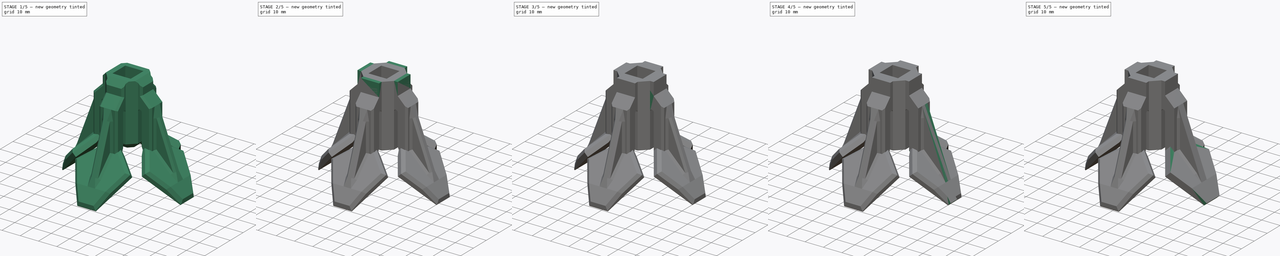
[diagram: build sequence overview — one tinted view per stage of 5, left to right]
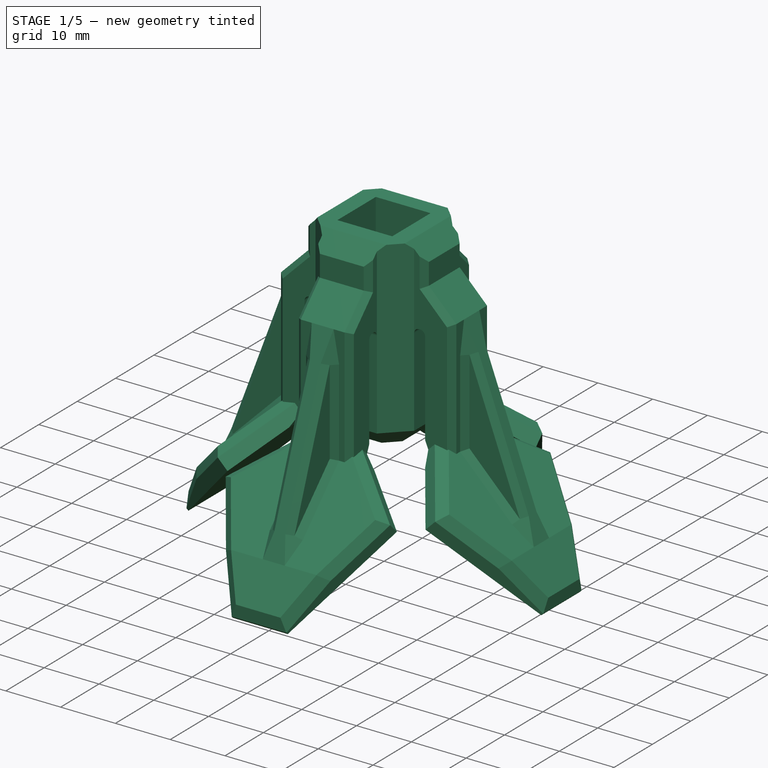
[diagram: stage 1 of 5 — iso view after this stage's code; geometry added in this stage tinted green]
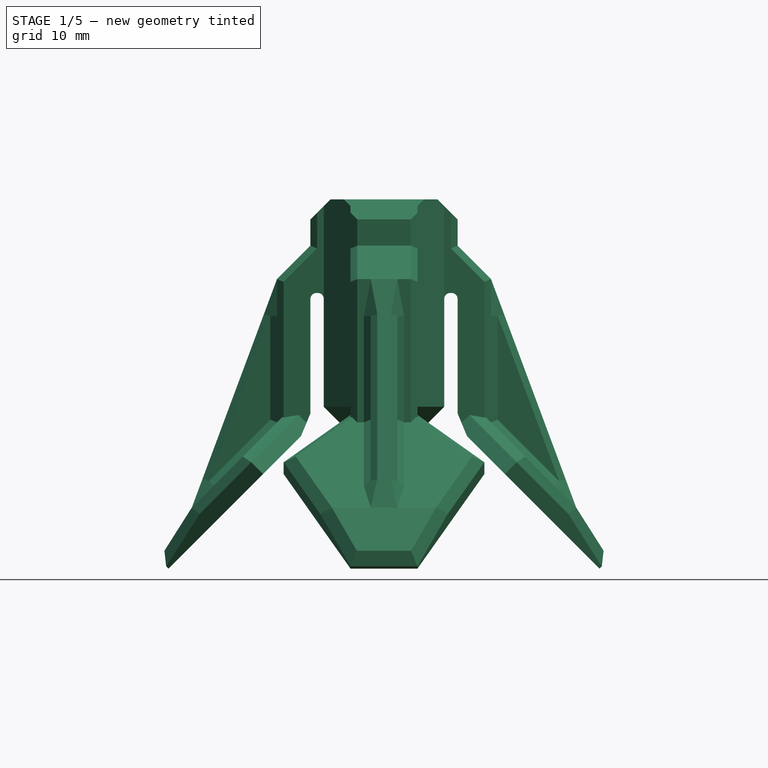
[diagram: stage 1 of 5 — front view after this stage's code; geometry added in this stage tinted green]
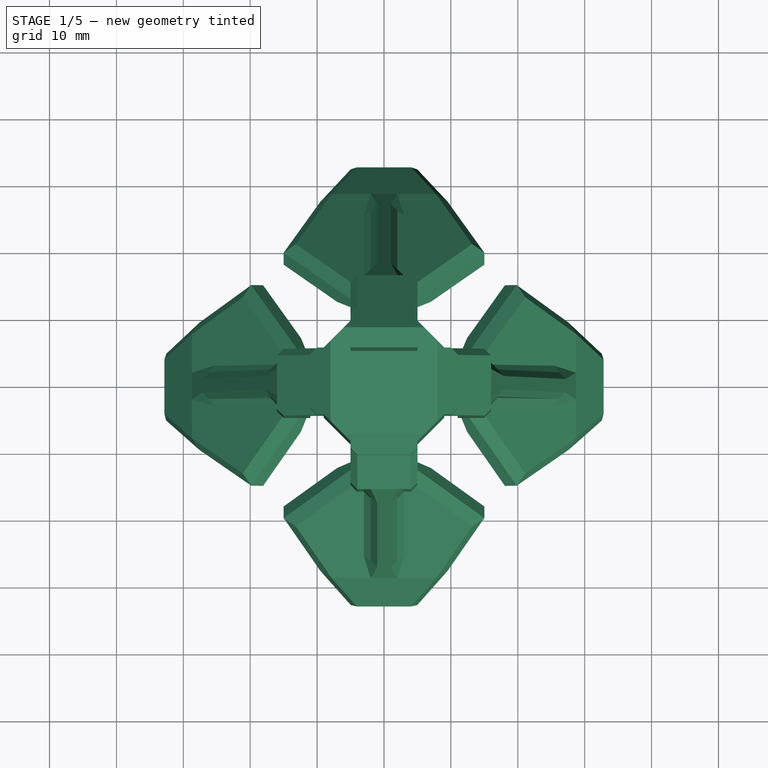
[diagram: stage 1 of 5 — top view after this stage's code; geometry added in this stage tinted green]
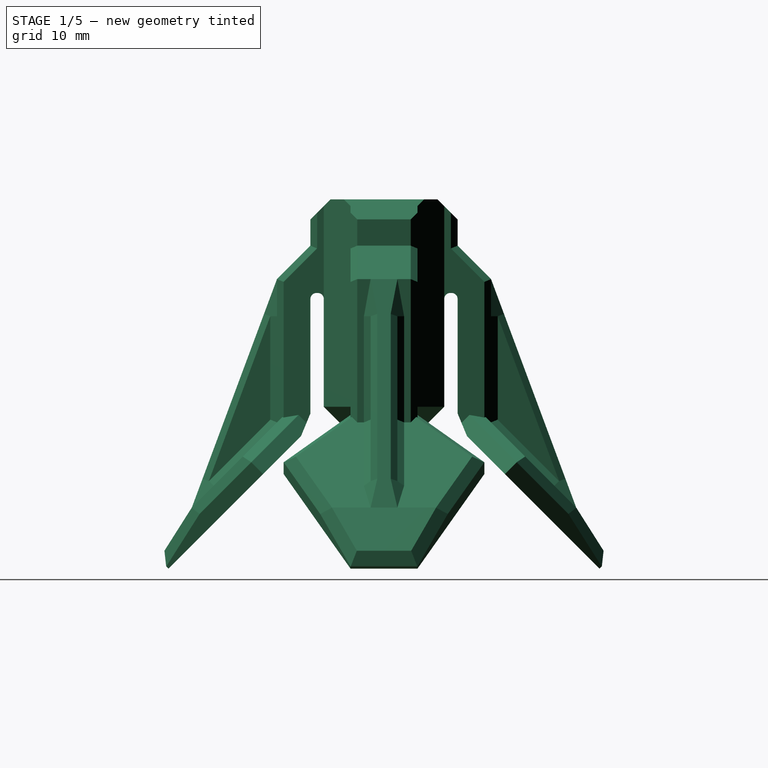
[diagram: stage 1 of 5 — right view after this stage's code; geometry added in this stage tinted green]
FCSTD DOCUMENT  (FreeCAD 0.16R6223 (Git))
Label: foot
License: All rights reserved
LicenseURL: http://en.wikipedia.org/wiki/All_rights_reserved
objects: Part::Feature×7, PartDesign::Chamfer×6, Sketcher::SketchObject×5, PartDesign::Pad×4, Part::MultiFuse×2, PartDesign::Fillet×2, PartDesign::Pocket×1
note: 32 computed .brp shape members not serialized (recipe doc carries the construction recipe); baked Part::Feature solids carry a one-line shape summary decoded from their .brp

FEATURE [Part::Feature] Pad002003001  label="Pad002004"
  shape: bbox 65.71 x 65.71 x 55.27 mm, 183 faces (baked)
FEATURE [PartDesign::Chamfer] Chamfer002005
  Base = -> Pad002003001 [Edge153,Edge225,Edge187,Edge119,Edge64,Edge94,Edge46,Edge91]
  Size = 3
FEATURE [PartDesign::Chamfer] Chamfer002006
  Base = -> Chamfer002005 [Edge153,Edge141,Edge142,Edge148,Edge122,Edge127,Edge115,Edge106,Edge107,Edge116,Edge50,Edge49,Edge18,Edge17,Edge90,Edge89]
  Size = 1
FEATURE [PartDesign::Chamfer] Chamfer002007
  Base = -> Chamfer002006 [Edge35,Edge45,Edge40,Edge30]
  Size = 3
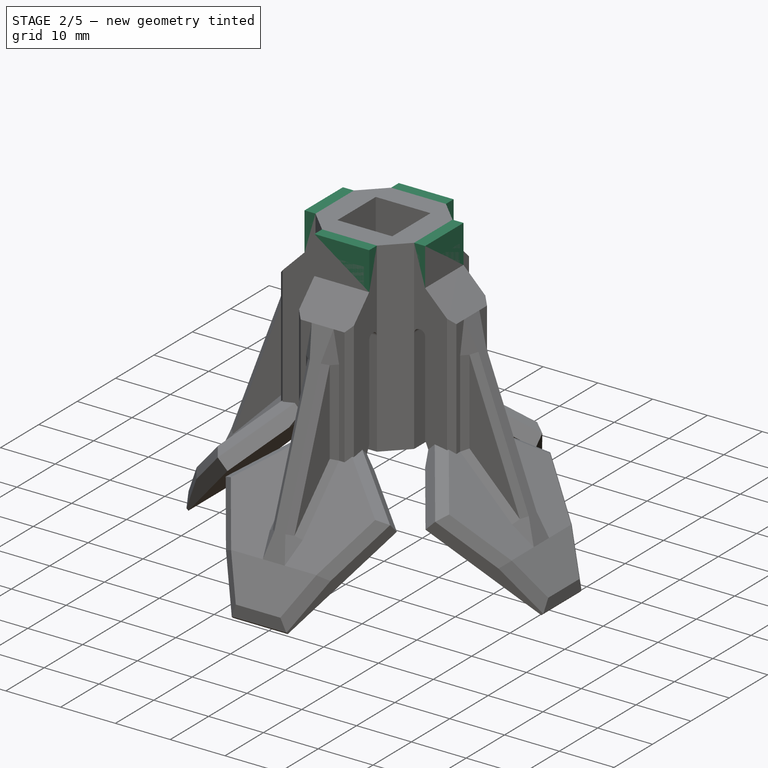
[diagram: stage 2 of 5 — iso view after this stage's code; geometry added in this stage tinted green]
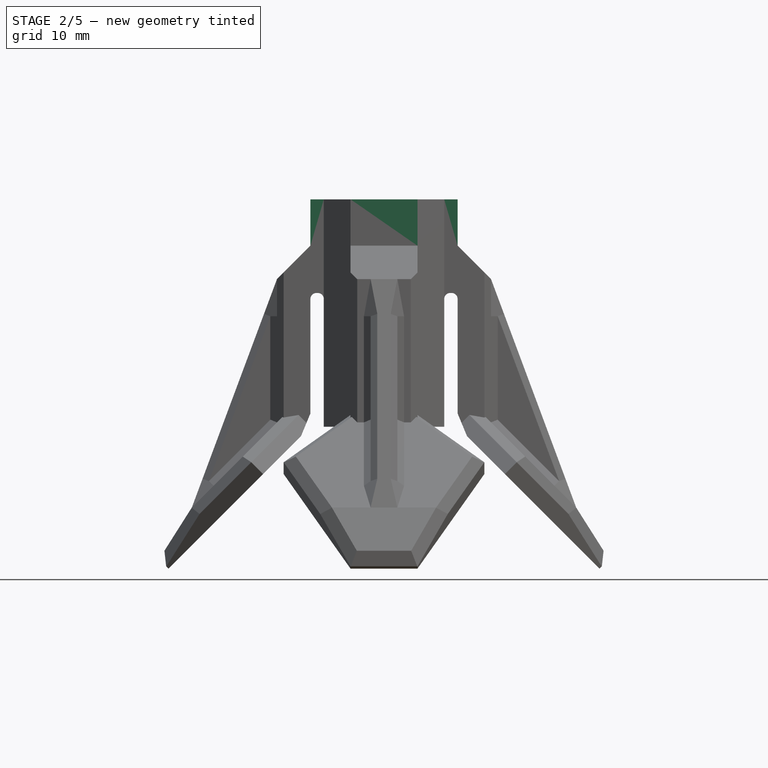
[diagram: stage 2 of 5 — front view after this stage's code; geometry added in this stage tinted green]
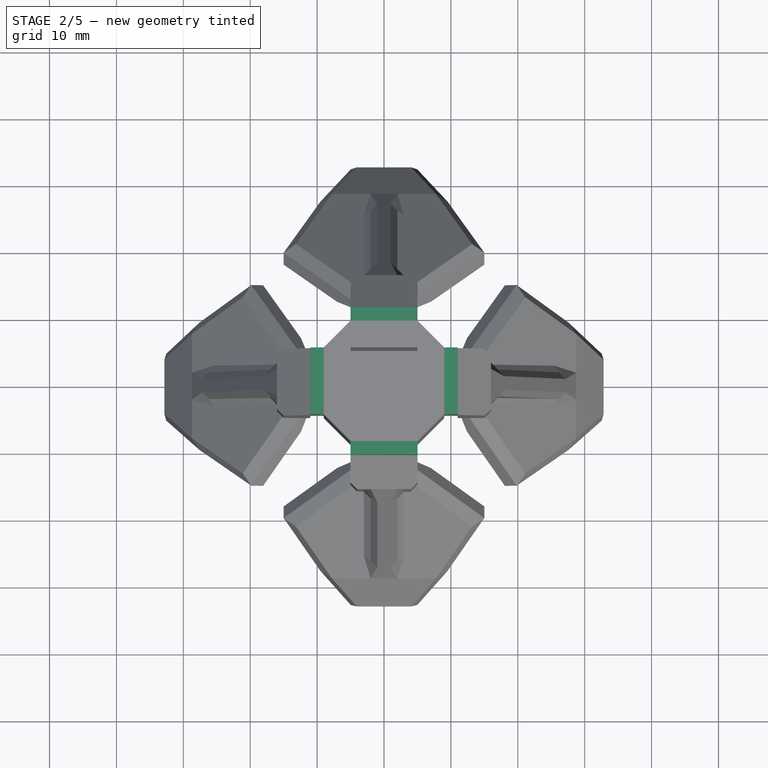
[diagram: stage 2 of 5 — top view after this stage's code; geometry added in this stage tinted green]
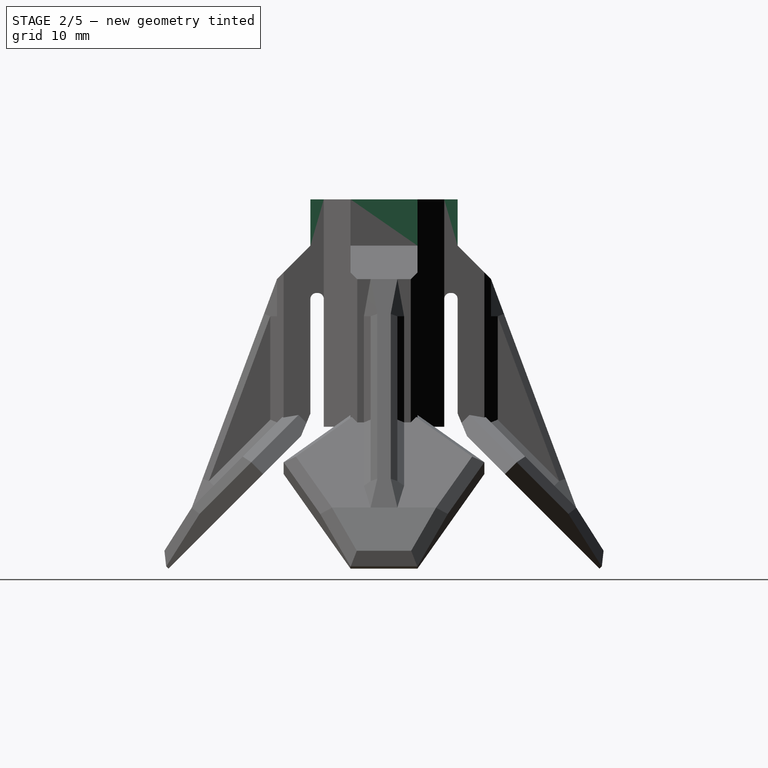
[diagram: stage 2 of 5 — right view after this stage's code; geometry added in this stage tinted green]
FEATURE [Part::Feature] Chamfer002001  label="Chamfer003"
  shape: bbox 32.88 x 30.06 x 55.27 mm, 48 faces (baked)
FEATURE [Part::Feature] Chamfer002002  label="Chamfer004"
  Placement = pos=(0,0,0) rot=(0,0,1;1.5708rad)
  shape: bbox 30.06 x 32.88 x 55.27 mm, 48 faces (baked)
FEATURE [Part::Feature] Chamfer002003  label="Chamfer005"
  Placement = pos=(0,0,0) rot=(0,0,-1;1.5708rad)
  shape: bbox 30.06 x 32.88 x 55.27 mm, 48 faces (baked)
FEATURE [Part::Feature] Chamfer002004  label="Chamfer006"
  Placement = pos=(0,0,0) rot=(0,0,1;3.14159rad)
  shape: bbox 32.88 x 30.06 x 55.27 mm, 48 faces (baked)
FEATURE [Part::MultiFuse] Fusion001
  Shapes = -> [Chamfer002001,Chamfer002004,Chamfer002002,Chamfer002003]
FEATURE [Sketcher::SketchObject] Sketch005
  ExternalGeometry = -> [Fusion001]
  Placement = pos=(0,0,0) rot=(1,0,0;3.14159rad)
  Support = -> Fusion001 [Face38]
  sketch-geometry (12):
    g0: LineSegment StartX=-5 StartY=5 StartZ=0 EndX=5 EndY=5 EndZ=0
    g1: LineSegment StartX=5 StartY=5 StartZ=0 EndX=5 EndY=-5 EndZ=0
    g2: LineSegment StartX=5 StartY=-5 StartZ=0 EndX=-5 EndY=-5 EndZ=0
    g3: LineSegment StartX=-5 StartY=-5 StartZ=0 EndX=-5 EndY=5 EndZ=0
    g4: LineSegment StartX=-9 StartY=5 StartZ=0 EndX=-5 EndY=9 EndZ=0
    g5: LineSegment StartX=-5 StartY=9 StartZ=0 EndX=5 EndY=9 EndZ=0
    g6: LineSegment StartX=5 StartY=9 StartZ=0 EndX=9 EndY=5 EndZ=0
    g7: LineSegment StartX=9 StartY=5 StartZ=0 EndX=9 EndY=-5 EndZ=0
    g8: LineSegment StartX=9 StartY=-5 StartZ=0 EndX=5 EndY=-9 EndZ=0
    g9: LineSegment StartX=5 StartY=-9 StartZ=0 EndX=-5 EndY=-9 EndZ=0
    g10: LineSegment StartX=-5 StartY=-9 StartZ=0 EndX=-9 EndY=-5 EndZ=0
    g11: LineSegment StartX=-9 StartY=-5 StartZ=0 EndX=-9 EndY=5 EndZ=0
  constraints (28):
    c: Coincident(g0,g1)
    c: Coincident(g1,g2)
    c: Coincident(g2,g3)
    c: Coincident(g3,g0)
    c: Horizontal(g0)
    c: Horizontal(g2)
    c: Vertical(g1)
    c: Vertical(g3)
    c: Coincident(g0,g-3)
    c: Coincident(g1,g-4)
    c: Coincident(g4,g5)
    c: Coincident(g5,g6)
    c: Coincident(g6,g7)
    c: Vertical(g7)
    c: Coincident(g7,g8)
    c: Coincident(g8,g9)
    c: Horizontal(g9)
    c: Coincident(g9,g10)
    c: Coincident(g10,g11)
    c: Coincident(g4,g11)
    c: Coincident(g4,g-5)
    c: Coincident(g4,g-6)
    c: Coincident(g5,g-6)
    c: Coincident(g6,g-7)
    c: Coincident(g8,g-8)
    c: Coincident(g7,g-7)
    c: Coincident(g9,g-8)
    c: Coincident(g10,g-5)
FEATURE [PartDesign::Pad] Pad002003
  Length = 10
  Length2 = 100
  Sketch = -> Sketch005
  Type = 3
  UpToFace = -> Fusion001 [Face37]
FEATURE [PartDesign::Fillet] Fillet001
  Base = -> Chamfer002007 [Edge61,Edge62,Edge59,Edge60]
  Radius = 1
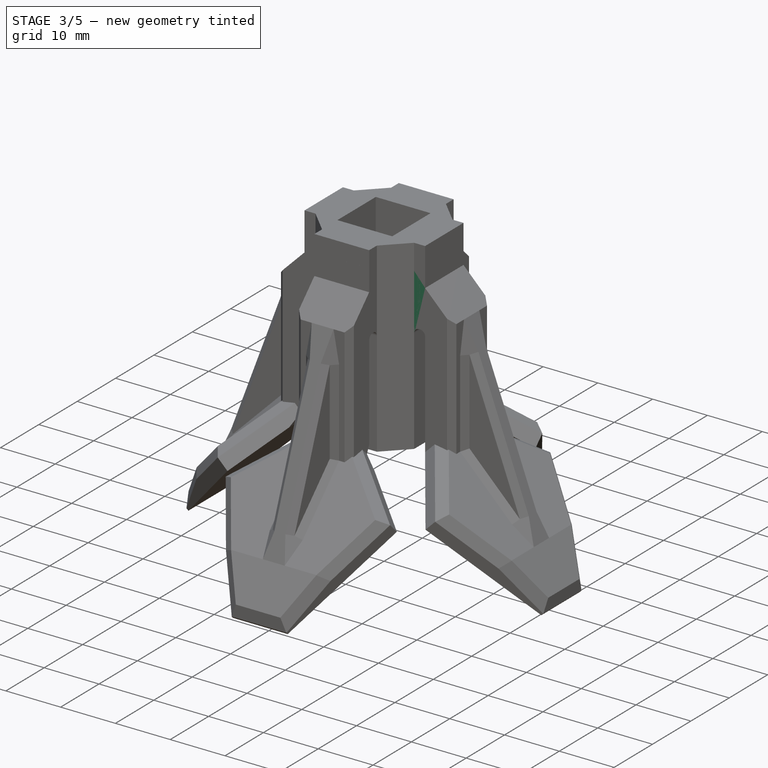
[diagram: stage 3 of 5 — iso view after this stage's code; geometry added in this stage tinted green]
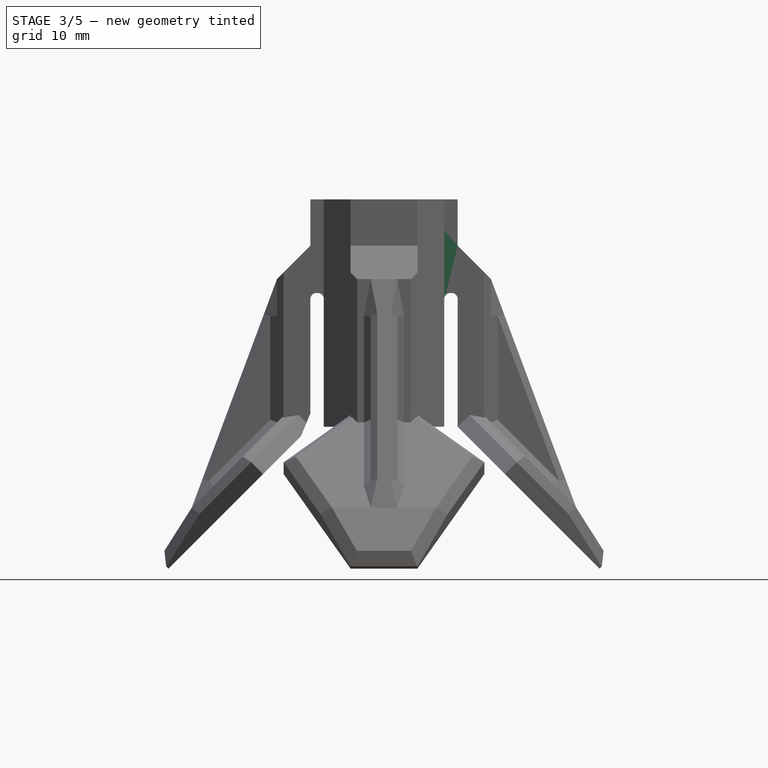
[diagram: stage 3 of 5 — front view after this stage's code; geometry added in this stage tinted green]
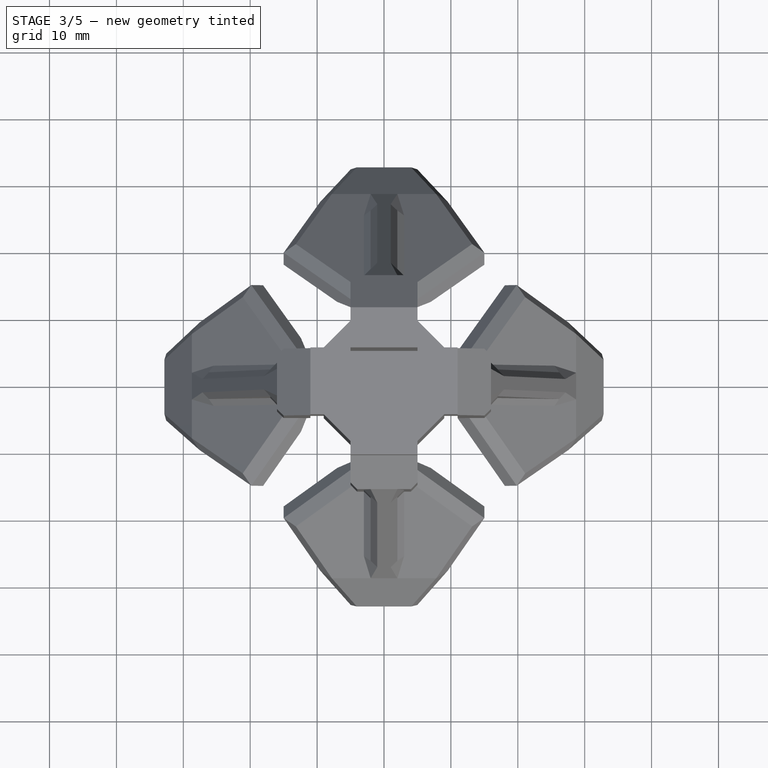
[diagram: stage 3 of 5 — top view after this stage's code; geometry added in this stage tinted green]
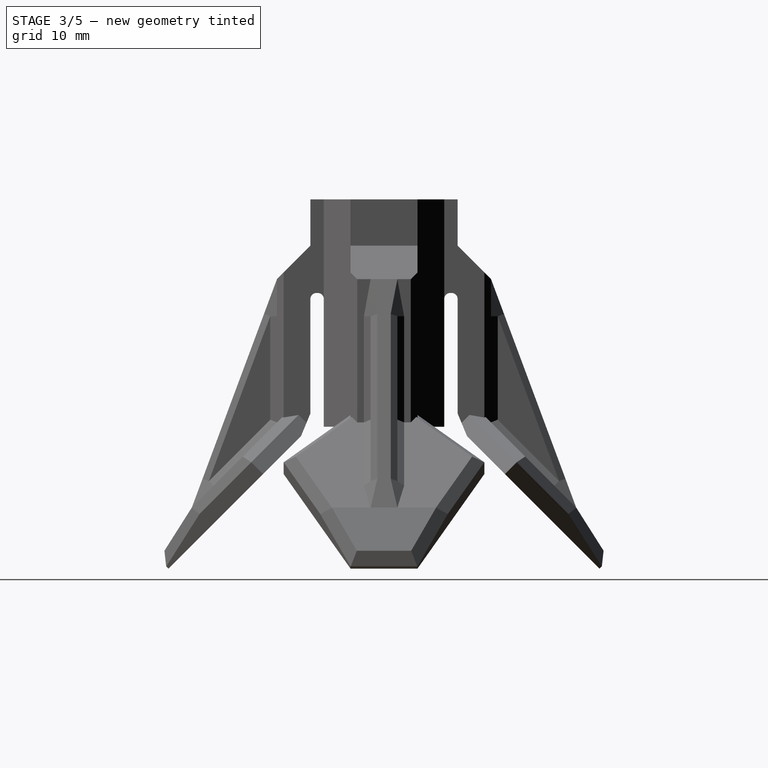
[diagram: stage 3 of 5 — right view after this stage's code; geometry added in this stage tinted green]
FEATURE [Part::Feature] Pocket001
  shape: bbox 33.63 x 30 x 55.21 mm, 26 faces (baked)
FEATURE [PartDesign::Chamfer] Chamfer
  Base = -> Pocket001 [Edge1,Edge25,Edge26,Edge31,Edge20,Edge5,Edge6,Edge3]
  Size = 1
FEATURE [PartDesign::Chamfer] Chamfer001
  Base = -> Chamfer [Edge11,Edge12,Edge44,Edge41,Edge84,Edge87,Edge40]
  Size = 1.5
FEATURE [PartDesign::Fillet] Fillet
  Base = -> Chamfer001 [Edge79,Edge84]
  Radius = 0.9
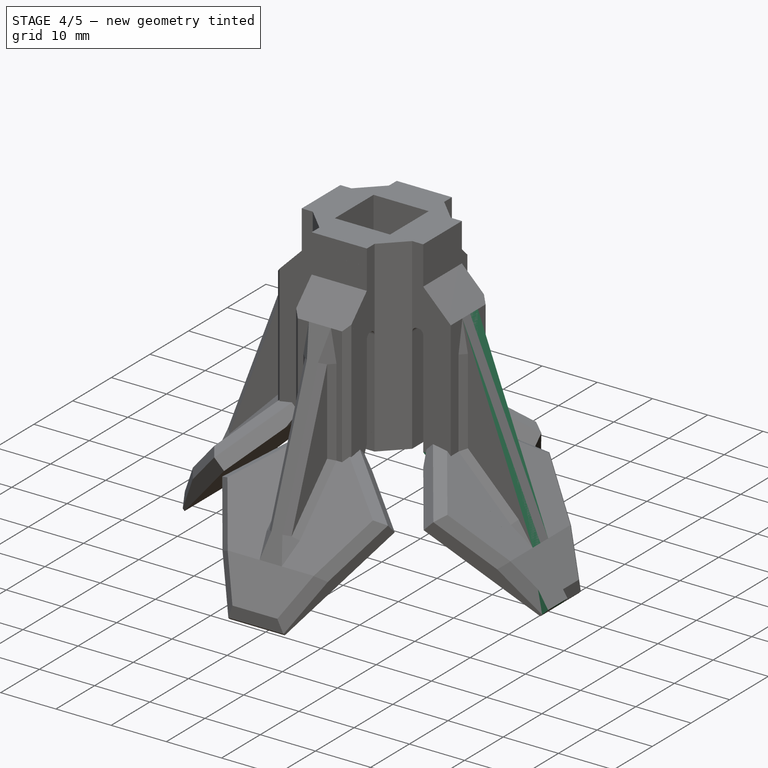
[diagram: stage 4 of 5 — iso view after this stage's code; geometry added in this stage tinted green]
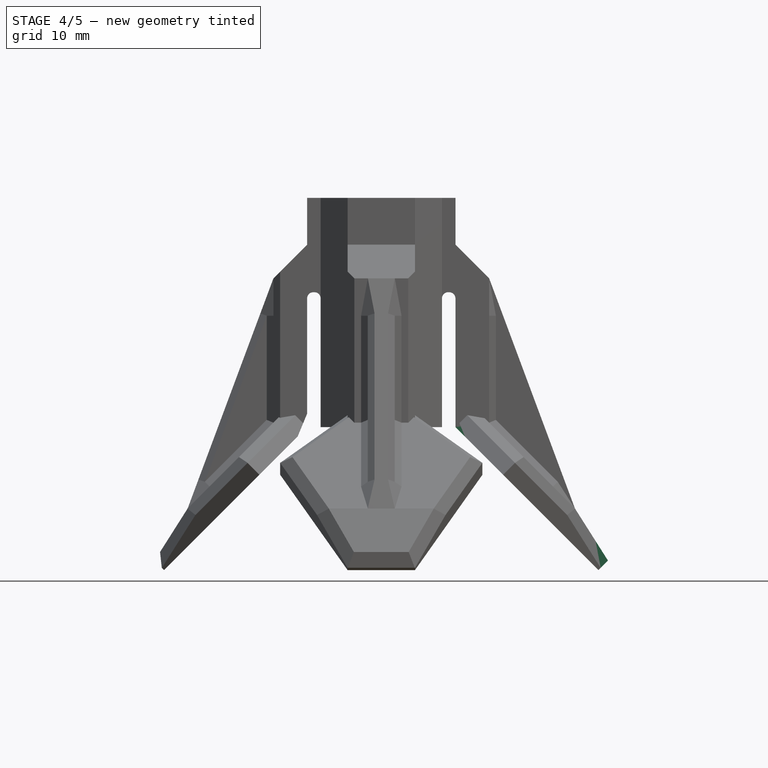
[diagram: stage 4 of 5 — front view after this stage's code; geometry added in this stage tinted green]
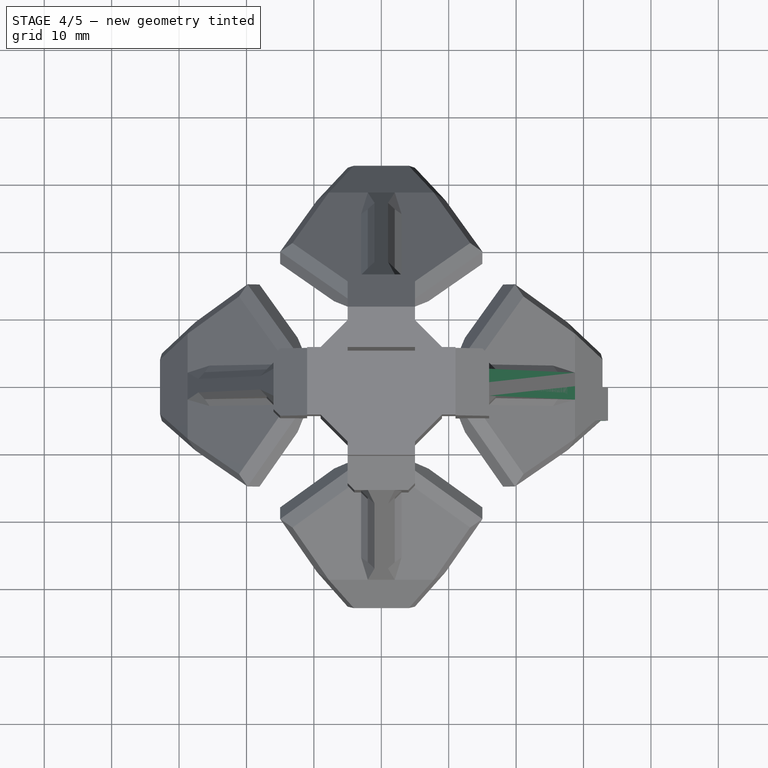
[diagram: stage 4 of 5 — top view after this stage's code; geometry added in this stage tinted green]
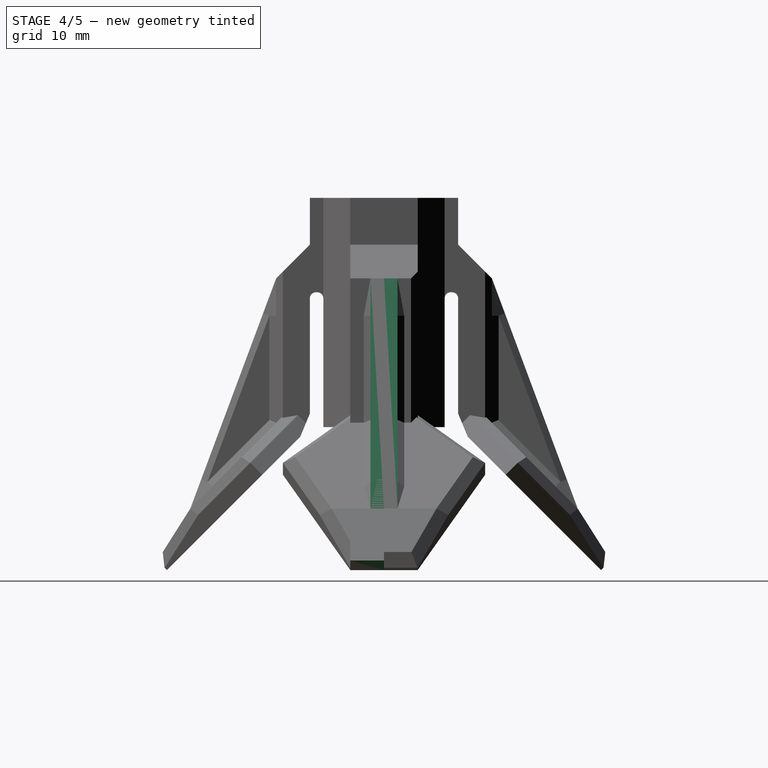
[diagram: stage 4 of 5 — right view after this stage's code; geometry added in this stage tinted green]
FEATURE [Sketcher::SketchObject] Sketch
  Placement = pos=(0,0,0) rot=(-1,0,0;4.71239rad)
  sketch-geometry (15):
    g0: LineSegment StartX=9 StartY=0 StartZ=0 EndX=0 EndY=0 EndZ=0
    g1: LineSegment StartX=0 StartY=0 StartZ=0 EndX=0 EndY=4 EndZ=0
    g2: LineSegment StartX=0 StartY=4 StartZ=0 EndX=5 EndY=4 EndZ=0
    g3: LineSegment StartX=5 StartY=4 StartZ=0 EndX=5 EndY=34 EndZ=0
    g4: LineSegment StartX=5 StartY=34 StartZ=0 EndX=11 EndY=34 EndZ=0
    g5: LineSegment StartX=11 StartY=34 StartZ=0 EndX=11 EndY=27.0711 EndZ=0
    g6: LineSegment StartX=9 StartY=0 StartZ=0 EndX=9 EndY=20 EndZ=0
    g7: LineSegment StartX=11 StartY=0 StartZ=0 EndX=32.2132 EndY=-21.2132 EndZ=0
    g8: LineSegment StartX=11 StartY=0 StartZ=0 EndX=11 EndY=20 EndZ=0
    g9: LineSegment StartX=11 StartY=20 StartZ=0 EndX=9 EndY=20 EndZ=0
    g10: LineSegment StartX=16 StartY=22.0711 StartZ=0 EndX=11 EndY=27.0711 EndZ=0
    g11: LineSegment StartX=32.2132 StartY=-21.2132 StartZ=0 EndX=33.6274 EndY=-19.799 EndZ=0
    g12: LineSegment StartX=33.6274 StartY=-19.799 StartZ=0 EndX=28.7279 EndY=-12.0711 EndZ=0
    g13: LineSegment StartX=16 StartY=22.0711 StartZ=0 EndX=16 EndY=0.656854 EndZ=0
    g14: LineSegment StartX=16 StartY=0.656854 StartZ=0 EndX=28.7279 EndY=-12.0711 EndZ=0
  constraints (44):
    c: Horizontal(g0)
    c: Coincident(g0,g1)
    c: Vertical(g1)
    c: Coincident(g1,g2)
    c: Horizontal(g2)
    c: Coincident(g2,g3)
    c: Vertical(g3)
    c: Coincident(g3,g4)
    c: Horizontal(g4)
    c: Coincident(g4,g5)
    c: Vertical(g5)
    c: Coincident(g0,g6)
    c: Vertical(g6)
    c: Coincident(g7,g8)
    c: Vertical(g8)
    c: Coincident(g8,g9)
    c: Horizontal(g9)
    c: Coincident(g6,g9)
    c: Distance(g9) = 2
    c: Distance(g4) = 6
    c: Distance(g1) = 4
    c: Distance(g6,g3) = 4
    c: Angle(g7) = -0.785398
    c: Coincident(g0,g-1)
    c: Distance(g2) = 5
    c: Distance(g7) = 30
    c: PointOnObject(g7,g-1)
    c: Coincident(g10,g5)
    c: Distance(g8,g10) = 5
    c: Distance(g8) = 20
    c: Coincident(g7,g11)
    c: Coincident(g11,g12)
    c: Perpendicular(g11,g7)
    c: Coincident(g10,g13)
    c: Vertical(g13)
    c: Coincident(g13,g14)
    c: Coincident(g14,g12)
    c: Distance(g10,g8) = 5
    c: Parallel(g14,g7)
    c: Distance(g12,g7) = 4
    c: Distance(g11) = 2
    c: Distance(g14) = 18
    c: Parallel(g10,g14)
    c: Distance(g3) = 30
FEATURE [PartDesign::Pad] Pad
  Length = 5
  Length2 = 100
  Placement = pos=(0,0,0) rot=(-1,0,0;4.71239rad)
  Sketch = -> Sketch
  Type = 0
FEATURE [Sketcher::SketchObject] Sketch002
  ExternalGeometry = -> [Pad]
  Placement = pos=(0,0,0) rot=(-1,0,0;1.5708rad)
  Support = -> Pad [Face16]
  sketch-geometry (3):
    g0: LineSegment StartX=16 StartY=-22.0711 StartZ=0 EndX=16 EndY=-0.656854 EndZ=0
    g1: LineSegment StartX=16 StartY=-0.656854 StartZ=0 EndX=28.7279 EndY=12.0711 EndZ=0
    g2: LineSegment StartX=28.7279 StartY=12.0711 StartZ=0 EndX=16 EndY=-22.0711 EndZ=0
  constraints (6):
    c: Coincident(g0,g1)
    c: Coincident(g1,g2)
    c: Coincident(g0,g2)
    c: Coincident(g0,g-4)
    c: Coincident(g0,g-4)
    c: Coincident(g1,g-3)
FEATURE [PartDesign::Pad] Pad001
  Length = 4
  Length2 = 100
  Midplane = true
  Placement = pos=(0,0,0) rot=(-1,0,0;4.71239rad)
  Reversed = true
  Sketch = -> Sketch002
  Type = 0
FEATURE [PartDesign::Chamfer] Chamfer002
  Base = -> Fillet [Edge17]
  Size = 2
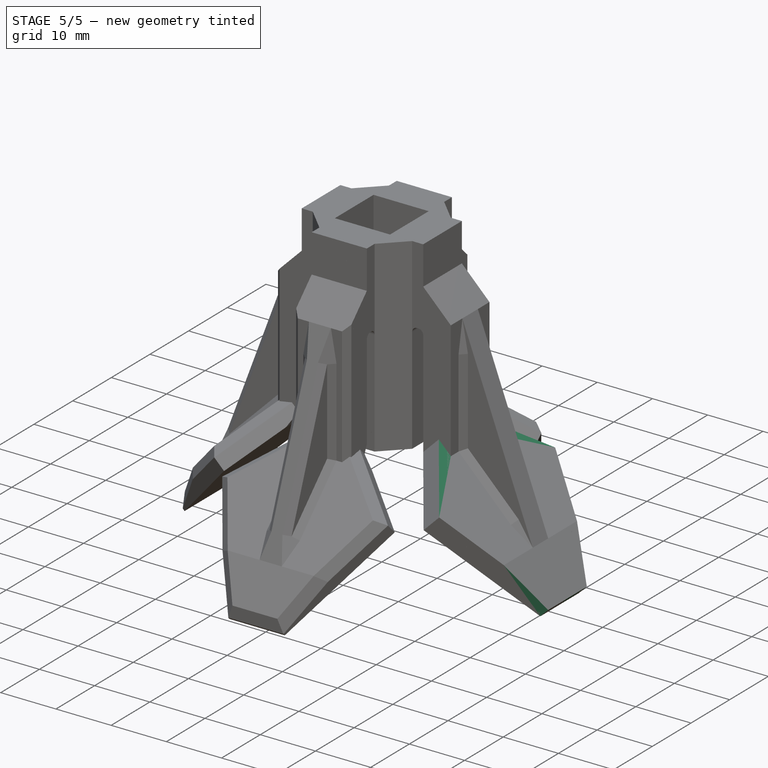
[diagram: stage 5 of 5 — iso view after this stage's code; geometry added in this stage tinted green]
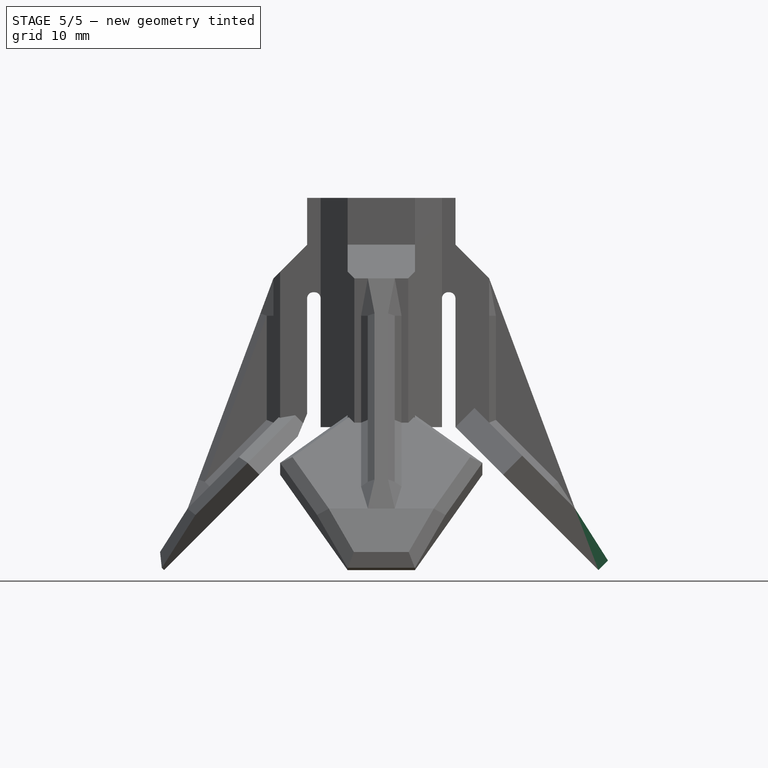
[diagram: stage 5 of 5 — front view after this stage's code; geometry added in this stage tinted green]
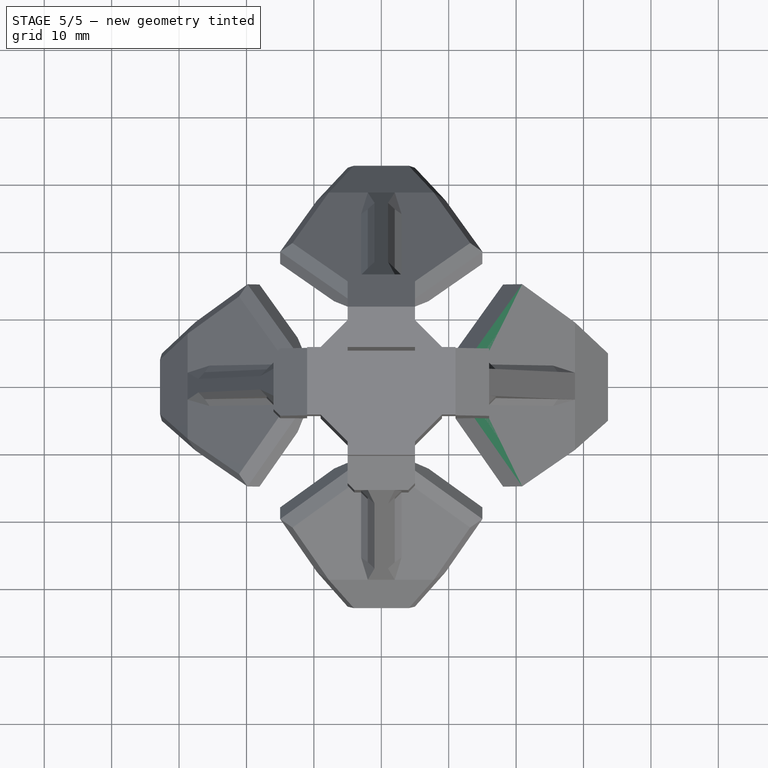
[diagram: stage 5 of 5 — top view after this stage's code; geometry added in this stage tinted green]
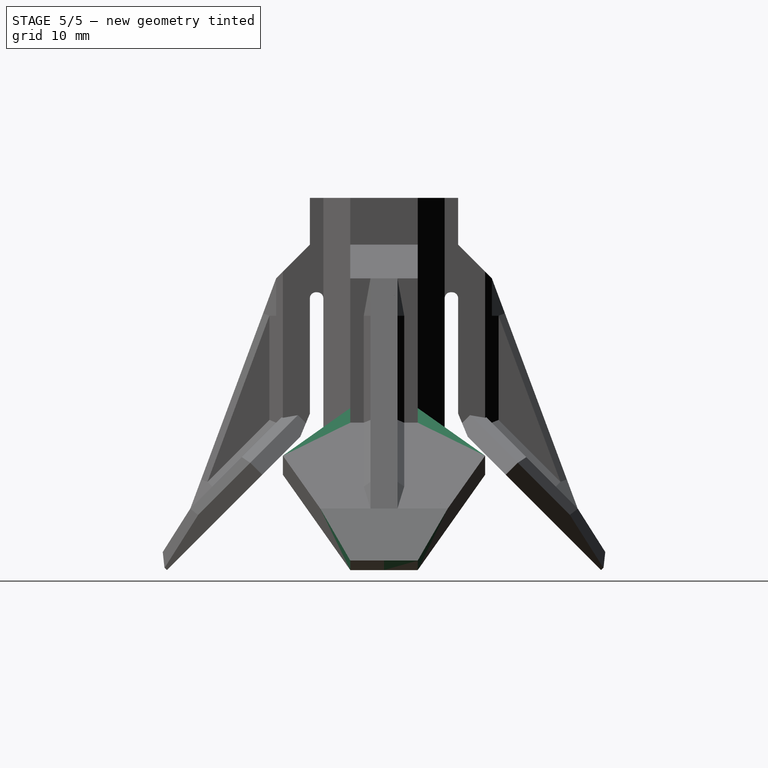
[diagram: stage 5 of 5 — right view after this stage's code; geometry added in this stage tinted green]
FEATURE [Part::Feature] Pad002001  label="Pad003"
  Placement = pos=(0,5,0) rot=(0,0,1;0rad)
  shape: bbox 33.63 x 5 x 55.21 mm, 17 faces (baked)
FEATURE [Part::MultiFuse] Fusion
  Shapes = -> [Pad001,Pad002001]
FEATURE [Sketcher::SketchObject] Sketch003
  ExternalGeometry = -> [Fusion]
  Placement = pos=(5.5,0,5.5) rot=(0.92388,0,-0.382683;3.14159rad)
  Support = -> Fusion [Face16]
  sketch-geometry (6):
    g0: LineSegment StartX=7.77817 StartY=5 StartZ=0 EndX=17.7782 EndY=15 EndZ=0
    g1: LineSegment StartX=17.7782 StartY=15 StartZ=0 EndX=37.7782 EndY=5 EndZ=0
    g2: LineSegment StartX=37.7782 StartY=5 StartZ=0 EndX=7.77817 EndY=5 EndZ=0
    g3: LineSegment StartX=7.77817 StartY=-5 StartZ=0 EndX=37.7782 EndY=-5 EndZ=0
    g4: LineSegment StartX=37.7782 StartY=-5 StartZ=0 EndX=17.7782 EndY=-15 EndZ=0
    g5: LineSegment StartX=17.7782 StartY=-15 StartZ=0 EndX=7.77817 EndY=-5 EndZ=0
  constraints (14):
    c: Coincident(g-3,g0)
    c: Coincident(g0,g1)
    c: Coincident(g1,g2)
    c: Coincident(g2,g0)
    c: Horizontal(g3)
    c: Coincident(g3,g4)
    c: Coincident(g4,g5)
    c: Coincident(g5,g3)
    c: Coincident(g3,g-4)
    c: Coincident(g3,g-4)
    c: Coincident(g1,g-3)
    c: Symmetric(g0,g4,g-1)
    c: Angle(g0) = 0.785398
    c: Distance(g0,g-3) = 10
FEATURE [PartDesign::Pad] Pad002002
  Length = 4
  Length2 = 100
  Reversed = true
  Sketch = -> Sketch003
  Type = 0
FEATURE [Sketcher::SketchObject] Sketch004
  ExternalGeometry = -> [Pad002002]
  Placement = pos=(0,-5,0) rot=(0,0.707107,0.707107;3.14159rad)
  Support = -> Pad002002 [Face23]
  sketch-geometry (3):
    g0: LineSegment StartX=-28.7279 StartY=-12.0711 StartZ=0 EndX=-35.0416 EndY=-18.3848 EndZ=0
    g1: LineSegment StartX=-35.0416 StartY=-18.3848 StartZ=0 EndX=-33.6274 EndY=-19.799 EndZ=0
    g2: LineSegment StartX=-33.6274 StartY=-19.799 StartZ=0 EndX=-28.7279 EndY=-12.0711 EndZ=0
  constraints (6):
    c: Coincident(g0,g1)
    c: Coincident(g1,g2)
    c: Coincident(g0,g2)
    c: Coincident(g0,g-4)
    c: Coincident(g0,g-5)
    c: Coincident(g1,g-5)
FEATURE [PartDesign::Pocket] Pocket
  Length = 50
  Midplane = true
  Sketch = -> Sketch004
  Type = 0
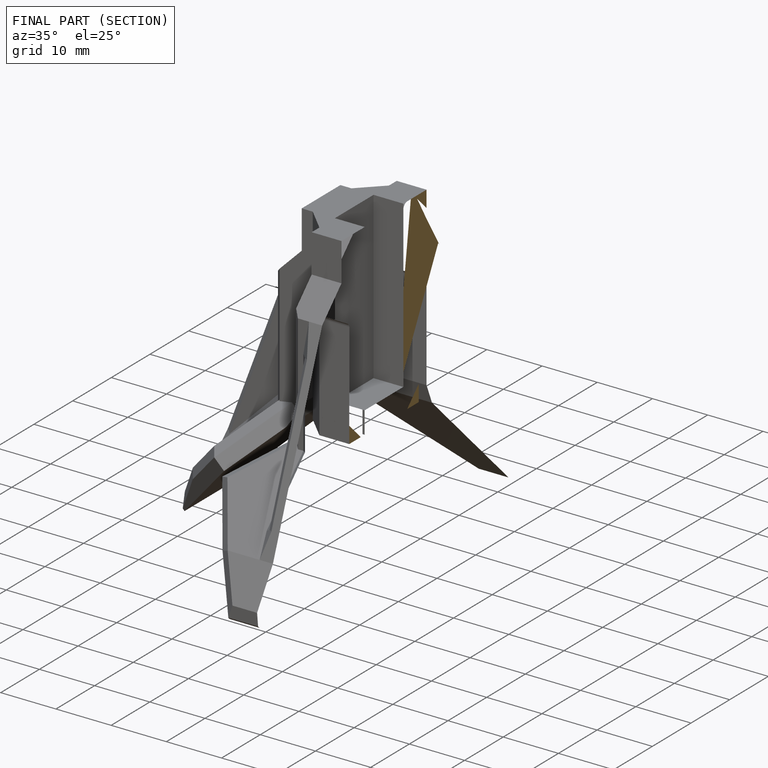
[diagram: finished part — half-section view (interior)]
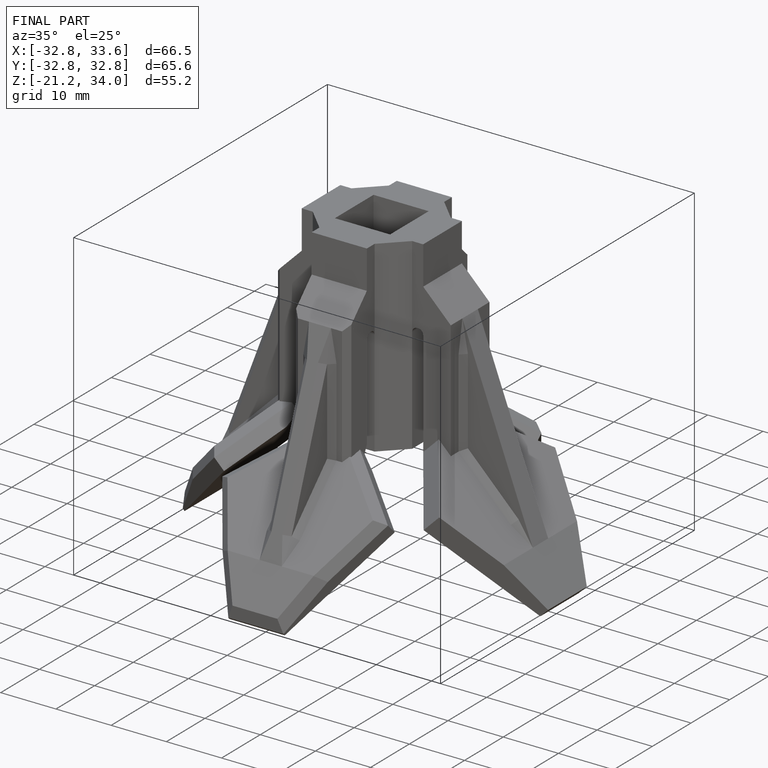
[diagram: finished part — iso view with bounding-box wireframe]
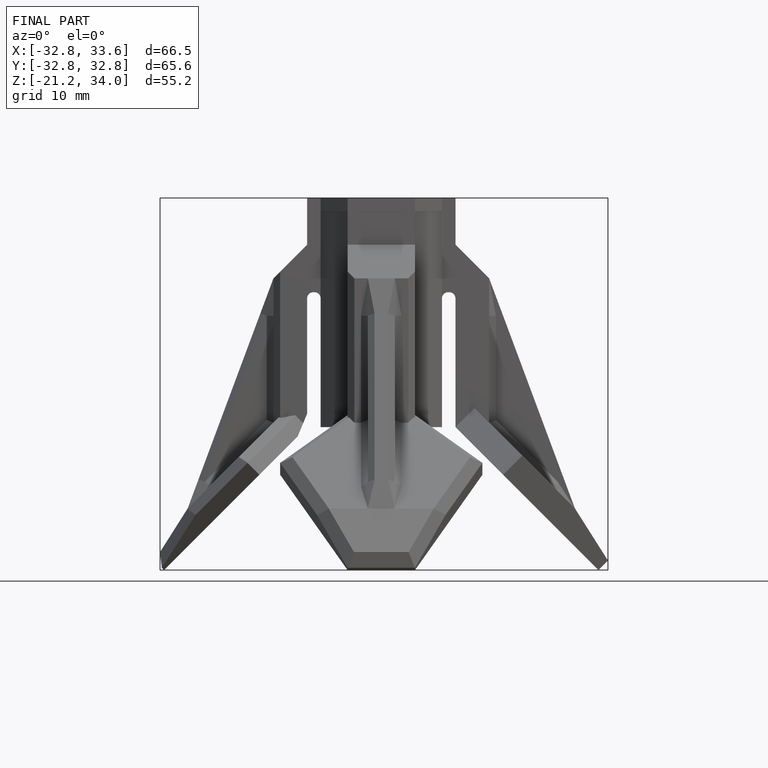
[diagram: finished part — front view with bounding-box wireframe]
